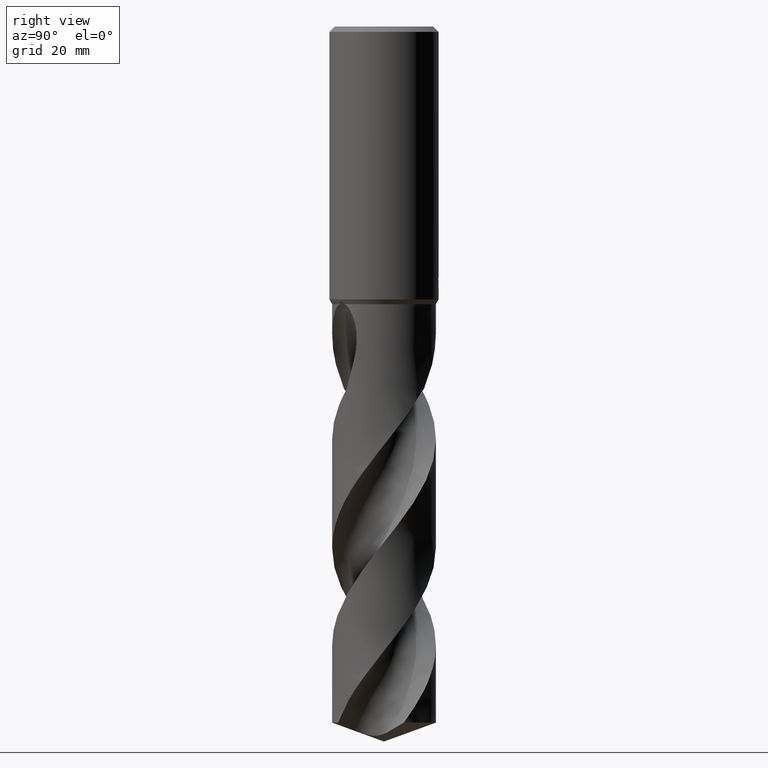
[diagram: clean part render]
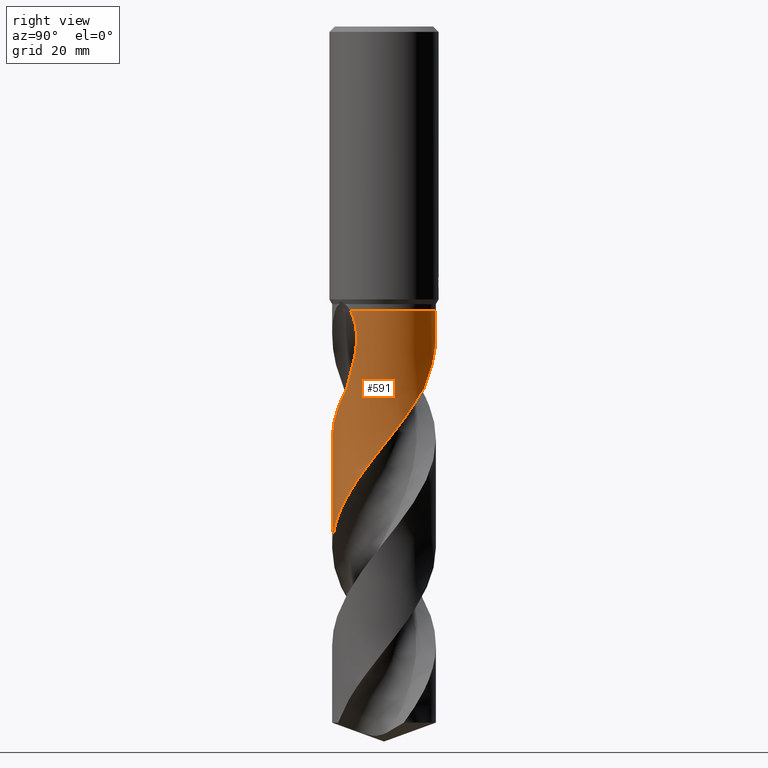
[diagram: same view with one face highlighted and labeled with its STEP entity id]
A machine part, right view. The second image highlights one B-rep face of the part: STEP entity #591.
In plain terms, the highlighted conical surface has half-angle 0 deg.
Its self-contained STEP definition (entity closure, byte-faithful):
#283=EDGE_CURVE('',#547,#495,#791,.T.);
#319=VERTEX_POINT('',#833);
#353=VERTEX_POINT('',#869);
#393=EDGE_CURVE('',#353,#495,#914,.T.);
#407=VERTEX_POINT('',#928);
#433=VERTEX_POINT('',#958);
#495=VERTEX_POINT('',#1025);
#521=VERTEX_POINT('',#1053);
#547=VERTEX_POINT('',#1085);
#549=EDGE_CURVE('',#407,#433,#1087,.T.);
#591=ADVANCED_FACE('',(#1132),#1133,.T.);
#593=EDGE_CURVE('',#407,#547,#1135,.T.);
#623=EDGE_CURVE('',#319,#433,#1166,.T.);
#699=EDGE_CURVE('',#521,#755,#1246,.T.);
#729=EDGE_CURVE('',#353,#521,#1281,.T.);
#731=EDGE_CURVE('',#755,#319,#1283,.T.);
#755=VERTEX_POINT('',#1308);
#791=B_SPLINE_CURVE_WITH_KNOTS('',3,(#1337,#1338,#1339,#1340,#1341,#1342,#1343,#1344,#1345,#1346,#1347,#1348,#1349,#1350),.UNSPECIFIED.,.F.,.F.,(4,2,2,2,2,2,4),(0.0,4.23027843618708,6.89430561927296,9.177702509606,11.7881255056075,14.9662076251028,17.0960814481239),.UNSPECIFIED.);
#833=CARTESIAN_POINT('',(6.60317748529335,-6.82982492497779,-66.369));
#869=CARTESIAN_POINT('',(-1.16175341552629E-015,9.4999,-52.0));
#914=LINE('',#3455,#3456);
#928=CARTESIAN_POINT('',(-5.63475832766119E-015,-9.49995761745559,-95.5255412277768));
#958=CARTESIAN_POINT('',(-4.1338880547068E-012,-9.49993127510532,-75.6259285171652));
#1025=CARTESIAN_POINT('',(-7.60760427284364E-014,9.49990565345061,-56.2707456434053));
#1053=CARTESIAN_POINT('',(7.20054291939289,-6.19679608152317,-52.0));
#1085=CARTESIAN_POINT('',(6.05350196316577,7.32144626355211,-66.369));
#1087=LINE('',#4397,#4398);
#1132=FACE_OUTER_BOUND('',#4799,.T.);
#1133=CONICAL_SURFACE('',#4800,9.49995,1.32376195591355E-006);
#1135=B_SPLINE_CURVE_WITH_KNOTS('',3,(#4803,#4804,#4805,#4806,#4807,#4808,#4809,#4810,#4811,#4812,#4813,#4814,#4815,#4816,#4817,#4818,#4819,#4820,#4821,#4822,#4823,#4824,#4825,#4826,#4827,#4828,#4829,#4830,#4831,#4832,#4833,#4834,#4835,#4836,#4837,#4838,#4839,#4840,#4841,#4842,#4843,#4844,#4845,#4846,#4847,#4848,#4849,#4850,#4851,#4852,#4853,#4854,#4855,#4856,#4857,#4858,#4859,#4860,#4861,#4862,#4863,#4864,#4865,#4866,#4867,#4868,#4869,#4870,#4871,#4872,#4873,#4874,#4875,#4876,#4877,#4878),.UNSPECIFIED.,.F.,.F.,(4,2,2,2,2,2,2,2,2,2,2,2,2,2,2,2,2,2,2,2,2,2,2,2,2,2,2,2,2,2,2,2,2,2,2,2,2,4),(0.0,2.25914382794848,7.05540213314211,10.0013620025224,11.5253119808895,15.6076413966644,17.1778170664988,20.150008110195,22.9904255456098,25.7622310089448,27.5633286447484,30.6550600490396,32.5073664853758,35.3741221962792,38.4894478065862,41.3894797799599,43.1024509994592,46.2297014957963,48.8296602367732,51.8557861740857,53.382475541873,56.1941078235527,56.8926950528538,58.3650637337148,62.6255429286548,63.0482380595942,66.5650620735292,68.9659712369194,69.4705231025515,70.6633072564733,74.075503221081,74.724813223672,76.2425961632874,76.7987441663649,77.143126899394,77.7137466620978,78.435062432694,79.0839071485579),.UNSPECIFIED.);
#1166=B_SPLINE_CURVE_WITH_KNOTS('',3,(#5030,#5031,#5032,#5033,#5034,#5035,#5036,#5037,#5038,#5039,#5040,#5041,#5042,#5043,#5044,#5045,#5046,#5047,#5048,#5049,#5050,#5051,#5052,#5053,#5054,#5055,#5056,#5057,#5058,#5059,#5060,#5061,#5062,#5063,#5064,#5065,#5066,#5067,#5068,#5069,#5070,#5071,#5072,#5073,#5074,#5075,#5076,#5077,#5078,#5079,#5080,#5081,#5082,#5083,#5084,#5085,#5086,#5087,#5088,#5089,#5090,#5091,#5092,#5093,#5094,#5095,#5096,#5097,#5098,#5099,#5100,#5101,#5102,#5103,#5104,#5105,#5106,#5107,#5108,#5109,#5110,#5111,#5112,#5113,#5114,#5115,#5116,#5117,#5118,#5119,#5120,#5121,#5122,#5123),.UNSPECIFIED.,.F.,.F.,(4,2,2,2,2,2,2,2,2,2,2,2,2,2,2,2,2,2,2,2,2,2,2,2,2,2,2,2,2,2,2,2,2,2,2,2,2,2,2,2,2,2,2,2,2,2,4),(0.0,0.251873119474417,1.49003797487971,1.88508295319793,2.13092462434853,2.35716562233721,3.13353898347718,4.18013330538902,4.83918963152517,5.93775065587762,6.81496857982327,8.02790787915014,9.75036210045493,13.2764124544649,14.4454629875948,15.6066051960238,17.9265473335705,19.0963699913995,21.4109945508094,23.7401067032691,26.0705935709527,28.3953475288639,29.5638755078165,30.7172768610607,33.0360554741393,34.205567762644,36.5191793595424,38.8491953685156,41.1763972234209,43.5015908754758,44.669614792135,45.8209936645345,48.1405530675708,49.3096707922411,51.6196713102826,53.9501576620426,56.2743511680703,58.6000247152023,59.6813820773217,60.6859263624276,64.4629977253642,65.888779279663,68.3922279306903,69.333198665928,70.9795006092645,73.4517762786799,75.9230377183362),.UNSPECIFIED.);
#1246=B_SPLINE_CURVE_WITH_KNOTS('',3,(#5412,#5413,#5414,#5415,#5416,#5417,#5418,#5419,#5420,#5421),.UNSPECIFIED.,.F.,.F.,(4,2,2,2,4),(0.0,1.78551288136538,4.28062278089992,5.58866814691196,6.95389737720684),.UNSPECIFIED.);
#1281=CIRCLE('',#5485,9.4999);
#1283=B_SPLINE_CURVE_WITH_KNOTS('',3,(#5488,#5489,#5490,#5491),.UNSPECIFIED.,.F.,.F.,(4,4),(0.0,5.45970122463208),.UNSPECIFIED.);
#1308=CARTESIAN_POINT('',(7.72951644436677,-5.52294360922269,-61.1671224011525));
#1337=CARTESIAN_POINT('',(6.05350196316577,7.3214462635521,-66.369));
#1338=CARTESIAN_POINT('',(5.48396324452613,7.7923489410828,-65.1680678391788));
#1339=CARTESIAN_POINT('',(4.83509486486939,8.21698880536241,-64.0391661099727));
#1340=CARTESIAN_POINT('',(3.65164441848617,8.78470780349574,-62.0826562837595));
#1341=CARTESIAN_POINT('',(3.18355989721829,8.9644557819263,-61.3315946045887));
#1342=CARTESIAN_POINT('',(2.29670003743438,9.22799003736431,-59.9102589694305));
#1343=CARTESIAN_POINT('',(1.88428366422933,9.32055917812331,-59.2503212144406));
#1344=CARTESIAN_POINT('',(0.998355981013403,9.45940455726478,-57.836194645093));
#1345=CARTESIAN_POINT('',(0.519711832890512,9.49791878462571,-57.0741310116029));
#1346=CARTESIAN_POINT('',(-0.549117833851365,9.50215883023187,-55.4218038689184));
#1347=CARTESIAN_POINT('',(-1.17725324549262,9.4496558071889,-54.4823493386712));
#1348=CARTESIAN_POINT('',(-2.25677855429187,9.23850060027544,-53.0639741051512));
#1349=CARTESIAN_POINT('',(-2.73400489453461,9.11336914453422,-52.4885671556441));
#1350=CARTESIAN_POINT('',(-3.23174414702127,8.93330452734003,-52.0));
#3455=CARTESIAN_POINT('',(-1.16175953855805E-015,9.49995,-89.7711413872355));
#3456=VECTOR('',#5784,1.0);
#4397=CARTESIAN_POINT('',(1.16498028764092E-015,-9.49995,-89.7711413872355));
#4398=VECTOR('',#6025,1.0);
#4799=EDGE_LOOP('',(#6064,#6065,#6066,#6067,#6068,#6069,#6070,#6071));
#4800=AXIS2_PLACEMENT_3D('',#6072,#6073,#6074);
#4803=CARTESIAN_POINT('',(-4.36296385263961,8.43887115795474,-127.542282774471));
#4804=CARTESIAN_POINT('',(-4.77764610713067,8.22447623667582,-126.951389679683));
#4805=CARTESIAN_POINT('',(-5.176173957763,7.97970135758723,-126.362922757773));
#4806=CARTESIAN_POINT('',(-6.36022765274576,7.12614945178725,-124.51937979315));
#4807=CARTESIAN_POINT('',(-7.06904232414146,6.42353461686034,-123.266118370053));
#4808=CARTESIAN_POINT('',(-8.01669625329731,5.13355388788151,-121.243026937107));
#4809=CARTESIAN_POINT('',(-8.32912879315042,4.60933690180441,-120.478456431995));
#4810=CARTESIAN_POINT('',(-8.72375569494503,3.774260099771,-119.31032211017));
#4811=CARTESIAN_POINT('',(-8.84385652546962,3.48345493400462,-118.910761334511));
#4812=CARTESIAN_POINT('',(-9.23123548329441,2.39596985348822,-117.44630540623));
#4813=CARTESIAN_POINT('',(-9.40700887071478,1.57012211901517,-116.393855119728));
#4814=CARTESIAN_POINT('',(-9.49668509821262,0.409027079604955,-114.918872334519));
#4815=CARTESIAN_POINT('',(-9.50511304345887,0.0854840934093664,-114.507800118172));
#4816=CARTESIAN_POINT('',(-9.48163276692737,-0.850777896871091,-113.322266315747));
#4817=CARTESIAN_POINT('',(-9.40703130025082,-1.46063029630061,-112.551992059182));
#4818=CARTESIAN_POINT('',(-9.14706491186412,-2.63139469765073,-111.036019651116));
#4819=CARTESIAN_POINT('',(-8.96747517247894,-3.19021596493322,-110.292189759932));
#4820=CARTESIAN_POINT('',(-8.5128702309612,-4.2553139649863,-108.828523136031));
#4821=CARTESIAN_POINT('',(-8.24140000914145,-4.75975583965216,-108.109815209039));
#4822=CARTESIAN_POINT('',(-7.72182621628587,-5.54623414885789,-106.916627273815));
#4823=CARTESIAN_POINT('',(-7.49939518483857,-5.84349197587626,-106.445068391842));
#4824=CARTESIAN_POINT('',(-6.84884531169745,-6.6143006126802,-105.168315813865));
#4825=CARTESIAN_POINT('',(-6.38976498132874,-7.05881291403582,-104.367652087565));
#4826=CARTESIAN_POINT('',(-5.58975902342685,-7.69089688098509,-103.078238373011));
#4827=CARTESIAN_POINT('',(-5.27640068144965,-7.90913534253174,-102.593407182346));
#4828=CARTESIAN_POINT('',(-4.44713948861286,-8.41550315432226,-101.362667808381));
#4829=CARTESIAN_POINT('',(-3.91548385444225,-8.67569853935399,-100.619982150801));
#4830=CARTESIAN_POINT('',(-2.76182308011779,-9.11231462418684,-99.0617355714749));
#4831=CARTESIAN_POINT('',(-2.13994262648687,-9.27805361388586,-98.2469664808705));
#4832=CARTESIAN_POINT('',(-0.915677088681687,-9.47460303797923,-96.6798484667713));
#4833=CARTESIAN_POINT('',(-0.318188899106291,-9.51337619631493,-95.9290683967865));
#4834=CARTESIAN_POINT('',(0.630977421934347,-9.48553511258699,-94.7264899279003));
#4835=CARTESIAN_POINT('',(0.982517363285374,-9.45559840398408,-94.2783464654673));
#4836=CARTESIAN_POINT('',(1.96975257968344,-9.31580462593564,-93.0163147252453));
#4837=CARTESIAN_POINT('',(2.59676518606004,-9.16084565191239,-92.2072087453112));
#4838=CARTESIAN_POINT('',(3.70768696781015,-8.76293900253013,-90.7145574116014));
#4839=CARTESIAN_POINT('',(4.19579006876159,-8.54001182973944,-90.0342466923527));
#4840=CARTESIAN_POINT('',(5.20650306849489,-7.97061378585728,-88.5680822760317));
#4841=CARTESIAN_POINT('',(5.71823764690522,-7.61175580968101,-87.7848292689607));
#4842=CARTESIAN_POINT('',(6.4291361677828,-7.00099640639205,-86.5973922185221));
#4843=CARTESIAN_POINT('',(6.6572836987401,-6.78443404384085,-86.1978485584879));
#4844=CARTESIAN_POINT('',(7.27441772659134,-6.13739309828989,-85.0659637931925));
#4845=CARTESIAN_POINT('',(7.63530691606576,-5.68219809194647,-84.3370462557659));
#4846=CARTESIAN_POINT('',(8.03139455782447,-5.07605727340245,-83.4219211248521));
#4847=CARTESIAN_POINT('',(8.10741341445541,-4.95373016084371,-83.2397959010672));
#4848=CARTESIAN_POINT('',(8.33477563348393,-4.56862988605857,-82.6733379431088));
#4849=CARTESIAN_POINT('',(8.47623656923074,-4.30049511969555,-82.2879995294314));
#4850=CARTESIAN_POINT('',(8.97665774759661,-3.2308848736352,-80.7920695115504));
#4851=CARTESIAN_POINT('',(9.23634217368114,-2.38893797746154,-79.6960923444581));
#4852=CARTESIAN_POINT('',(9.39087897037605,-1.43795689608881,-78.4739451093429));
#4853=CARTESIAN_POINT('',(9.40364882369943,-1.3519375472871,-78.3635477876074));
#4854=CARTESIAN_POINT('',(9.51177352791322,-0.547569359483818,-77.334250114523));
#4855=CARTESIAN_POINT('',(9.52595580890934,0.180177446566566,-76.4205871937928));
#4856=CARTESIAN_POINT('',(9.40974699873206,1.39686335423885,-74.8767789411622));
#4857=CARTESIAN_POINT('',(9.32409999536809,1.88502953581784,-74.2518401415464));
#4858=CARTESIAN_POINT('',(9.1755578932051,2.46343914273579,-73.4920793868634));
#4859=CARTESIAN_POINT('',(9.14815612505257,2.56332863320836,-73.3600350334463));
#4860=CARTESIAN_POINT('',(9.05026138365084,2.89855552982415,-72.9159377388671));
#4861=CARTESIAN_POINT('',(8.97215082599955,3.13208557483117,-72.6042286320928));
#4862=CARTESIAN_POINT('',(8.635088525562,4.02264352672498,-71.4067170214034));
#4863=CARTESIAN_POINT('',(8.34737604610072,4.56481980190514,-70.6713413395356));
#4864=CARTESIAN_POINT('',(8.0229429156495,5.08828359554266,-69.8712147690114));
#4865=CARTESIAN_POINT('',(7.97036072525027,5.1702157258036,-69.7425772642794));
#4866=CARTESIAN_POINT('',(7.7931062743086,5.43750749040061,-69.3097626759785));
#4867=CARTESIAN_POINT('',(7.66015669102224,5.62460435927499,-68.9877661286545));
#4868=CARTESIAN_POINT('',(7.44541475795789,5.90111247530221,-68.5091858715551));
#4869=CARTESIAN_POINT('',(7.36762521632377,5.99852302287841,-68.3371040711843));
#4870=CARTESIAN_POINT('',(7.23759353821996,6.15400294540807,-68.0759393232801));
#4871=CARTESIAN_POINT('',(7.18608893604712,6.21411031584516,-67.9774897444905));
#4872=CARTESIAN_POINT('',(7.04417315791923,6.37542729875686,-67.7193147665786));
#4873=CARTESIAN_POINT('',(6.95074391729806,6.47734375616173,-67.5623945386925));
#4874=CARTESIAN_POINT('',(6.72712936121084,6.71019387690756,-67.2150638114967));
#4875=CARTESIAN_POINT('',(6.59439975897924,6.84100527721863,-67.0277596877635));
#4876=CARTESIAN_POINT('',(6.32631935212154,7.08915213388461,-66.6821623166124));
#4877=CARTESIAN_POINT('',(6.19312547474728,7.20600332681957,-66.5235583563215));
#4878=CARTESIAN_POINT('',(6.05350196316577,7.32144626355211,-66.369));
#5030=CARTESIAN_POINT('',(6.60317748529335,-6.82982492497779,-66.369));
#5031=CARTESIAN_POINT('',(6.56732896395903,-6.86448393908082,-66.436546522774));
#5032=CARTESIAN_POINT('',(6.53115245635342,-6.89891447658585,-66.504067563078));
#5033=CARTESIAN_POINT('',(6.3149115299211,-7.10147783387571,-66.903078365389));
#5034=CARTESIAN_POINT('',(6.12978801977891,-7.26225138908425,-67.2251662843483));
#5035=CARTESIAN_POINT('',(5.86478478188207,-7.47392289208394,-67.6554609286801));
#5036=CARTESIAN_POINT('',(5.79982235722404,-7.52445502051112,-67.7588390478024));
#5037=CARTESIAN_POINT('',(5.69263840179053,-7.60559187503814,-67.9264725843445));
#5038=CARTESIAN_POINT('',(5.65119667314177,-7.63643642647113,-67.9905997013739));
#5039=CARTESIAN_POINT('',(5.57092280014327,-7.69516709525039,-68.1136881018543));
#5040=CARTESIAN_POINT('',(5.5322006993833,-7.72305285643811,-68.1725699294469));
#5041=CARTESIAN_POINT('',(5.35943519568297,-7.84549903454466,-68.4335023074185));
#5042=CARTESIAN_POINT('',(5.22357780849434,-7.93666342151522,-68.6347568913061));
#5043=CARTESIAN_POINT('',(4.89238725200132,-8.14639367558284,-69.1219739903466));
#5044=CARTESIAN_POINT('',(4.7004642307511,-8.25854854610104,-69.401312545323));
#5045=CARTESIAN_POINT('',(4.38139138210525,-8.4303954783629,-69.8613224756083));
#5046=CARTESIAN_POINT('',(4.25674872801167,-8.49400948220576,-70.0396320928485));
#5047=CARTESIAN_POINT('',(3.92093419370303,-8.65616358956185,-70.5145064653467));
#5048=CARTESIAN_POINT('',(3.70713196104935,-8.74987848372962,-70.8110692137834));
#5049=CARTESIAN_POINT('',(3.31616233855425,-8.90429592797499,-71.343477523361));
#5050=CARTESIAN_POINT('',(3.1408016110143,-8.96765543348787,-71.5785596485852));
#5051=CARTESIAN_POINT('',(2.71796768364287,-9.1064788490791,-72.1400093546992));
#5052=CARTESIAN_POINT('',(2.46950326296371,-9.17696974893974,-72.4655149234991));
#5053=CARTESIAN_POINT('',(1.86220258410466,-9.32282960169812,-73.2544413810069));
#5054=CARTESIAN_POINT('',(1.50154116498336,-9.38764188352505,-73.7180489701718));
#5055=CARTESIAN_POINT('',(0.394981797080532,-9.52120682516674,-75.1295690590272));
#5056=CARTESIAN_POINT('',(-0.356824426973428,-9.52277614827244,-76.0740024630786));
#5057=CARTESIAN_POINT('',(-1.34820719978957,-9.40706323295377,-77.3357973576078));
#5058=CARTESIAN_POINT('',(-1.59380662861743,-9.36857866404848,-77.6498581064332));
#5059=CARTESIAN_POINT('',(-2.07972523618513,-9.27277800634745,-78.2761645391085));
#5060=CARTESIAN_POINT('',(-2.31982955284709,-9.2156388194545,-78.5881104618288));
#5061=CARTESIAN_POINT('',(-3.03200282022896,-9.0165746045621,-79.5241445965765));
#5062=CARTESIAN_POINT('',(-3.49569369237579,-8.84714662559732,-80.1475239355353));
#5063=CARTESIAN_POINT('',(-4.17037883993012,-8.53923743204956,-81.0857117092812));
#5064=CARTESIAN_POINT('',(-4.39245374559397,-8.42716132855404,-81.4000032530859));
#5065=CARTESIAN_POINT('',(-5.04020717935877,-8.06767281718645,-82.3364985612037));
#5066=CARTESIAN_POINT('',(-5.45111385114966,-7.79589843251718,-82.9574649867071));
#5067=CARTESIAN_POINT('',(-6.22930362330623,-7.18954231603338,-84.2062108835002));
#5068=CARTESIAN_POINT('',(-6.59538308864851,-6.85528955669688,-84.8316866618132));
#5069=CARTESIAN_POINT('',(-7.27249042120494,-6.13231416686873,-86.0842211341981));
#5070=CARTESIAN_POINT('',(-7.58223420582164,-5.74489912783116,-86.7091397145258));
#5071=CARTESIAN_POINT('',(-8.1377029167724,-4.92653626177327,-87.961020938963));
#5072=CARTESIAN_POINT('',(-8.38287588817914,-4.49673531200497,-88.5855422657487));
#5073=CARTESIAN_POINT('',(-8.69942976001206,-3.82500557377009,-89.5246875121231));
#5074=CARTESIAN_POINT('',(-8.79647912253519,-3.59621201265578,-89.8386361038093));
#5075=CARTESIAN_POINT('',(-8.9712983328452,-3.13448875576243,-90.4627657061389));
#5076=CARTESIAN_POINT('',(-9.04919647870367,-2.90193066438135,-90.7725807621672));
#5077=CARTESIAN_POINT('',(-9.25632911188926,-2.19369668308835,-91.7063069344376));
#5078=CARTESIAN_POINT('',(-9.35766391004626,-1.71061077868816,-92.3294860198512));
#5079=CARTESIAN_POINT('',(-9.45303068946396,-0.975269793209317,-93.2674757844495));
#5080=CARTESIAN_POINT('',(-9.47532037539241,-0.727528649373846,-93.5817598452777));
#5081=CARTESIAN_POINT('',(-9.51267928303701,0.0122041841635203,-94.5181385722579));
#5082=CARTESIAN_POINT('',(-9.49927820838909,0.504555485150675,-95.1391222030793));
#5083=CARTESIAN_POINT('',(-9.39609472123268,1.48584570221717,-96.388123838004));
#5084=CARTESIAN_POINT('',(-9.3058910167287,1.97359676838131,-97.0139167213018));
#5085=CARTESIAN_POINT('',(-9.05026968921457,2.93031556297424,-98.266044268255));
#5086=CARTESIAN_POINT('',(-8.88542390177284,3.39751275616411,-98.8902744218214));
#5087=CARTESIAN_POINT('',(-8.48479611656557,4.30135969956399,-100.141667395396));
#5088=CARTESIAN_POINT('',(-8.24957200941492,4.7369092323875,-100.766401149436));
#5089=CARTESIAN_POINT('',(-7.84675166845045,5.36092487007266,-101.705710187293));
#5090=CARTESIAN_POINT('',(-7.70391556159159,5.56423841439905,-102.019582977183));
#5091=CARTESIAN_POINT('',(-7.40474481344827,5.95643247914748,-102.643163292462));
#5092=CARTESIAN_POINT('',(-7.24881321239238,6.14524046039473,-102.952532536493));
#5093=CARTESIAN_POINT('',(-6.75740719425368,6.69551557252032,-103.886133615673));
#5094=CARTESIAN_POINT('',(-6.40082279977045,7.03719469259367,-104.50960516961));
#5095=CARTESIAN_POINT('',(-5.82696920605054,7.50717406885272,-105.447864741232));
#5096=CARTESIAN_POINT('',(-5.62852014054174,7.65709115712674,-105.762096246245));
#5097=CARTESIAN_POINT('',(-5.02103316297714,8.07960962656154,-106.697574726252));
#5098=CARTESIAN_POINT('',(-4.59668522202638,8.32832486419646,-107.317810445428));
#5099=CARTESIAN_POINT('',(-3.70980003626753,8.75969285898945,-108.566195409821));
#5100=CARTESIAN_POINT('',(-3.24797913384517,8.94124356565065,-109.192181840475));
#5101=CARTESIAN_POINT('',(-2.30116492914014,9.23030614247163,-110.443831731749));
#5102=CARTESIAN_POINT('',(-1.81802705194892,9.33747188172765,-111.067430289815));
#5103=CARTESIAN_POINT('',(-0.83946637530835,9.47571855063603,-112.318392358247));
#5104=CARTESIAN_POINT('',(-0.345233044315785,9.5065797490061,-112.943345611922));
#5105=CARTESIAN_POINT('',(0.379223255067798,9.49519503817697,-113.859645236233));
#5106=CARTESIAN_POINT('',(0.608975566000796,9.48323351858148,-114.150306776725));
#5107=CARTESIAN_POINT('',(1.05093319125585,9.44409198646768,-114.711218465786));
#5108=CARTESIAN_POINT('',(1.26301702200371,9.41807245751972,-114.981189993123));
#5109=CARTESIAN_POINT('',(2.26734642350548,9.26033275358307,-116.267489277209));
#5110=CARTESIAN_POINT('',(3.04199820874608,9.03558036823438,-117.280418017207));
#5111=CARTESIAN_POINT('',(4.05754445977954,8.59523831014453,-118.679638745028));
#5112=CARTESIAN_POINT('',(4.32978700719178,8.46136034949678,-119.062672390087));
#5113=CARTESIAN_POINT('',(5.0609415840037,8.05729310584805,-120.119967309998));
#5114=CARTESIAN_POINT('',(5.5044231746928,7.76109801673638,-120.793101536775));
#5115=CARTESIAN_POINT('',(6.07730718881284,7.30453566954457,-121.719821208893));
#5116=CARTESIAN_POINT('',(6.22985784314959,7.17487345916158,-121.972879628076));
#5117=CARTESIAN_POINT('',(6.63779914475541,6.80530525401712,-122.668833055765));
#5118=CARTESIAN_POINT('',(6.88414073868035,6.55599898177118,-123.111167562962));
#5119=CARTESIAN_POINT('',(7.46452414931052,5.89977451662334,-124.21920845152));
#5120=CARTESIAN_POINT('',(7.77954681174378,5.4776779865413,-124.882932302769));
#5121=CARTESIAN_POINT('',(8.33632943933207,4.58603564602007,-126.213228692416));
#5122=CARTESIAN_POINT('',(8.57727900842124,4.11785367436553,-126.877483343065));
#5123=CARTESIAN_POINT('',(8.77829669865342,3.63201143588658,-127.542282774471));
#5412=CARTESIAN_POINT('',(7.20054291939288,-6.19679608152318,-52.0));
#5413=CARTESIAN_POINT('',(7.4352841925398,-5.92403276504139,-52.4740518748326));
#5414=CARTESIAN_POINT('',(7.62014166802073,-5.67793138362195,-53.0631328731898));
#5415=CARTESIAN_POINT('',(7.95143592622405,-5.20910750185352,-54.6840797460708));
#5416=CARTESIAN_POINT('',(8.06098852379124,-5.02680623401118,-55.8296201001782));
#5417=CARTESIAN_POINT('',(8.06983031138421,-5.01259586585472,-57.7819764358557));
#5418=CARTESIAN_POINT('',(8.04382806944381,-5.05519385812865,-58.4535260704409));
#5419=CARTESIAN_POINT('',(7.93387256310848,-5.22615911954703,-59.8123825431198));
#5420=CARTESIAN_POINT('',(7.84768144257499,-5.35756680775271,-60.4950289591176));
#5421=CARTESIAN_POINT('',(7.72951644436677,-5.52294360922268,-61.1671224011525));
#5485=AXIS2_PLACEMENT_3D('',#6220,#6221,#6222);
#5488=CARTESIAN_POINT('',(7.72951644441938,-5.52294360914904,-61.1671224011814));
#5489=CARTESIAN_POINT('',(7.42325054620094,-5.95157539877557,-62.9091079017857));
#5490=CARTESIAN_POINT('',(7.05411921650949,-6.39384453121148,-64.6614593991236));
#5491=CARTESIAN_POINT('',(6.60317748529335,-6.82982492497779,-66.369));
#5784=DIRECTION('',(-1.6210873021596E-022,1.32376195591317E-006,-0.999999999999124));
#6025=DIRECTION('',(-1.6210873021596E-022,1.32376195591317E-006,0.999999999999124));
#6064=ORIENTED_EDGE('',*,*,#393,.F.);
#6065=ORIENTED_EDGE('',*,*,#729,.T.);
#6066=ORIENTED_EDGE('',*,*,#699,.T.);
#6067=ORIENTED_EDGE('',*,*,#731,.T.);
#6068=ORIENTED_EDGE('',*,*,#623,.T.);
#6069=ORIENTED_EDGE('',*,*,#549,.F.);
#6070=ORIENTED_EDGE('',*,*,#593,.T.);
#6071=ORIENTED_EDGE('',*,*,#283,.T.);
#6072=CARTESIAN_POINT('',(0.0,0.0,-89.7711413872355));
#6073=DIRECTION('',(0.0,-0.0,-1.0));
#6074=DIRECTION('',(0.0,1.0,0.0));
#6220=CARTESIAN_POINT('',(0.0,0.0,-52.0));
#6221=DIRECTION('',(0.0,0.0,-1.0));
#6222=DIRECTION('',(0.0,1.0,0.0));